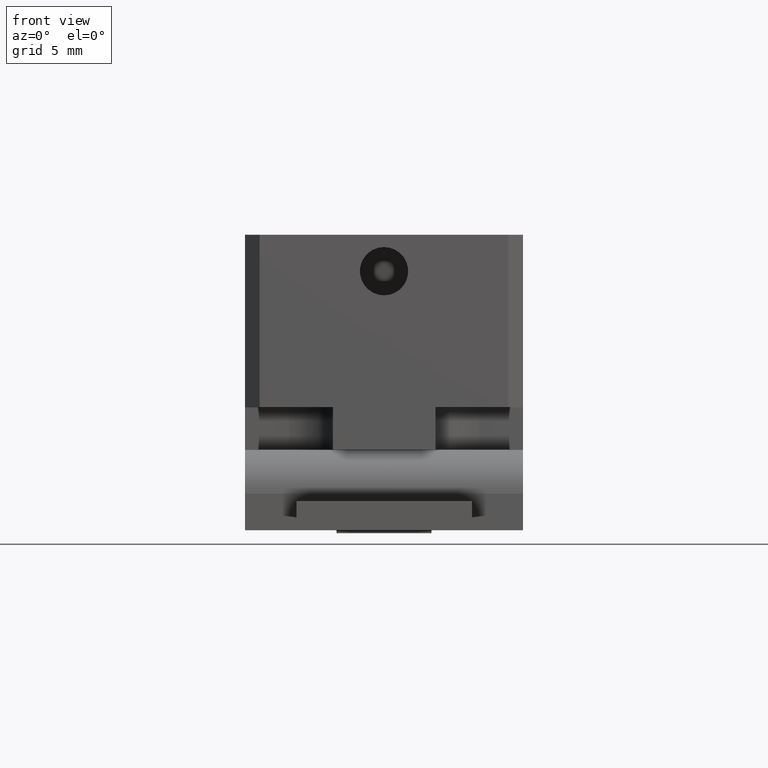
[diagram: clean part render]
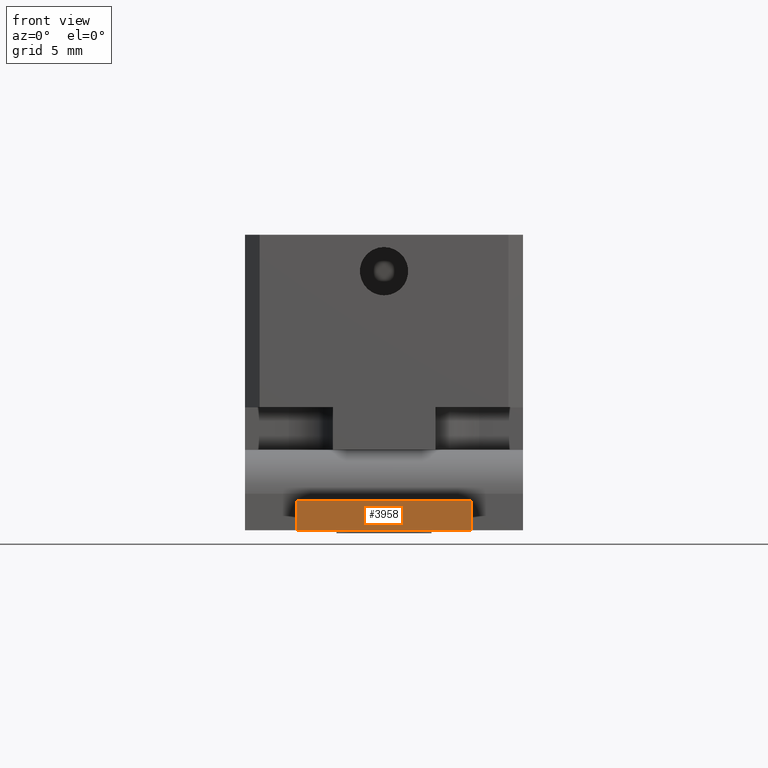
[diagram: same view with one face highlighted and labeled with its STEP entity id]
A machine part, front view. The second image highlights one B-rep face of the part: STEP entity #3958.
In plain terms, the highlighted planar face has unit normal (0, 1, 0).
Its self-contained STEP definition (entity closure, byte-faithful):
#138 = CARTESIAN_POINT ( 'NONE',  ( -10.90605340999041000, -23.04697329500456600, 22.70000000000000600 ) ) ;
#168 = CARTESIAN_POINT ( 'NONE',  ( -4.906053409990408700, -23.04697329500456600, 17.20000000000000600 ) ) ;
#219 = ORIENTED_EDGE ( 'NONE', *, *, #1790, .F. ) ;
#475 = DIRECTION ( 'NONE',  ( -0.0000000000000000000, -0.0000000000000000000, -1.000000000000000000 ) ) ;
#503 = VECTOR ( 'NONE', #475, 1000.000000000000000 ) ;
#512 = FACE_OUTER_BOUND ( 'NONE', #4046, .T. ) ;
#545 = CARTESIAN_POINT ( 'NONE',  ( 1.093946590009589900, -23.04697329500456600, 17.20000000000000600 ) ) ;
#598 = VERTEX_POINT ( 'NONE', #3586 ) ;
#635 = VECTOR ( 'NONE', #2553, 1000.000000000000000 ) ;
#661 = VERTEX_POINT ( 'NONE', #2637 ) ;
#766 = EDGE_CURVE ( 'NONE', #2710, #2479, #3285, .T. ) ;
#868 = CARTESIAN_POINT ( 'NONE',  ( -10.90605340999041000, -23.04697329500456600, 19.20000000000000600 ) ) ;
#1111 = CARTESIAN_POINT ( 'NONE',  ( 1.093946590009589900, -23.04697329500456600, 19.20000000000000600 ) ) ;
#1124 = DIRECTION ( 'NONE',  ( 0.0000000000000000000, 1.000000000000000000, 0.0000000000000000000 ) ) ;
#1538 = ORIENTED_EDGE ( 'NONE', *, *, #1930, .T. ) ;
#1790 = EDGE_CURVE ( 'NONE', #661, #2710, #3926, .T. ) ;
#1873 = EDGE_CURVE ( 'NONE', #661, #598, #1965, .T. ) ;
#1930 = EDGE_CURVE ( 'NONE', #598, #2479, #2640, .T. ) ;
#1965 = LINE ( 'NONE', #138, #503 ) ;
#2169 = DIRECTION ( 'NONE',  ( 1.000000000000000000, 0.0000000000000000000, 0.0000000000000000000 ) ) ;
#2176 = VECTOR ( 'NONE', #3533, 1000.000000000000000 ) ;
#2248 = ORIENTED_EDGE ( 'NONE', *, *, #766, .F. ) ;
#2263 = ORIENTED_EDGE ( 'NONE', *, *, #1873, .T. ) ;
#2282 = AXIS2_PLACEMENT_3D ( 'NONE', #3778, #1124, #3442 ) ;
#2479 = VERTEX_POINT ( 'NONE', #545 ) ;
#2553 = DIRECTION ( 'NONE',  ( -0.0000000000000000000, -0.0000000000000000000, -1.000000000000000000 ) ) ;
#2637 = CARTESIAN_POINT ( 'NONE',  ( -10.90605340999041000, -23.04697329500456600, 19.20000000000000600 ) ) ;
#2640 = LINE ( 'NONE', #168, #4283 ) ;
#2710 = VERTEX_POINT ( 'NONE', #1111 ) ;
#3114 = PLANE ( 'NONE',  #2282 ) ;
#3285 = LINE ( 'NONE', #3852, #635 ) ;
#3442 = DIRECTION ( 'NONE',  ( 0.0000000000000000000, -0.0000000000000000000, 1.000000000000000000 ) ) ;
#3533 = DIRECTION ( 'NONE',  ( 1.000000000000000000, 0.0000000000000000000, 0.0000000000000000000 ) ) ;
#3586 = CARTESIAN_POINT ( 'NONE',  ( -10.90605340999041000, -23.04697329500456600, 17.20000000000000600 ) ) ;
#3778 = CARTESIAN_POINT ( 'NONE',  ( -4.906053409990408700, -23.04697329500456600, 22.70000000000000600 ) ) ;
#3852 = CARTESIAN_POINT ( 'NONE',  ( 1.093946590009589900, -23.04697329500456600, 22.70000000000000600 ) ) ;
#3926 = LINE ( 'NONE', #868, #2176 ) ;
#3958 = ADVANCED_FACE ( 'NONE', ( #512 ), #3114, .F. ) ;
#4046 = EDGE_LOOP ( 'NONE', ( #2248, #219, #2263, #1538 ) ) ;
#4283 = VECTOR ( 'NONE', #2169, 1000.000000000000000 ) ;